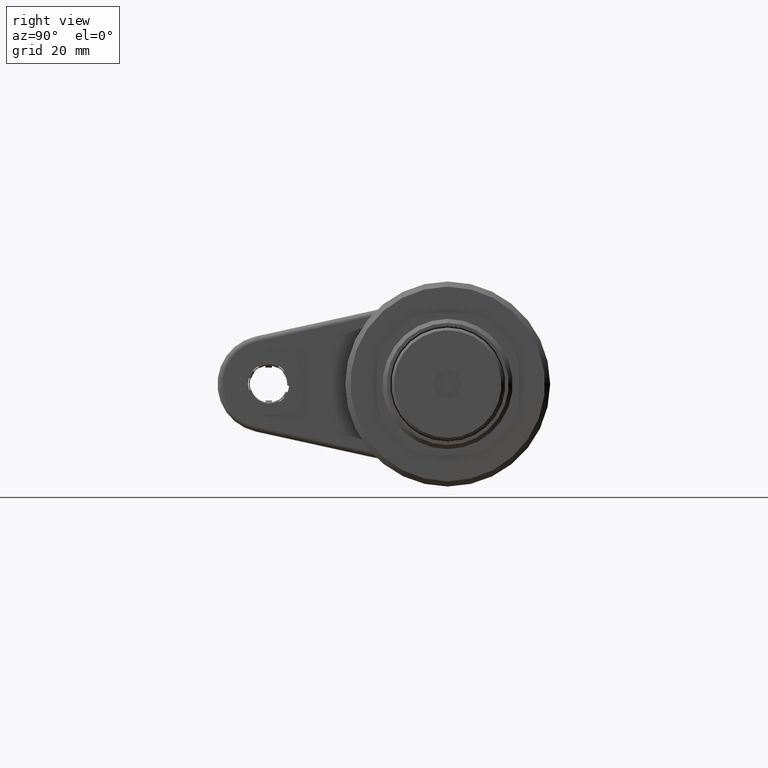
[diagram: clean part render]
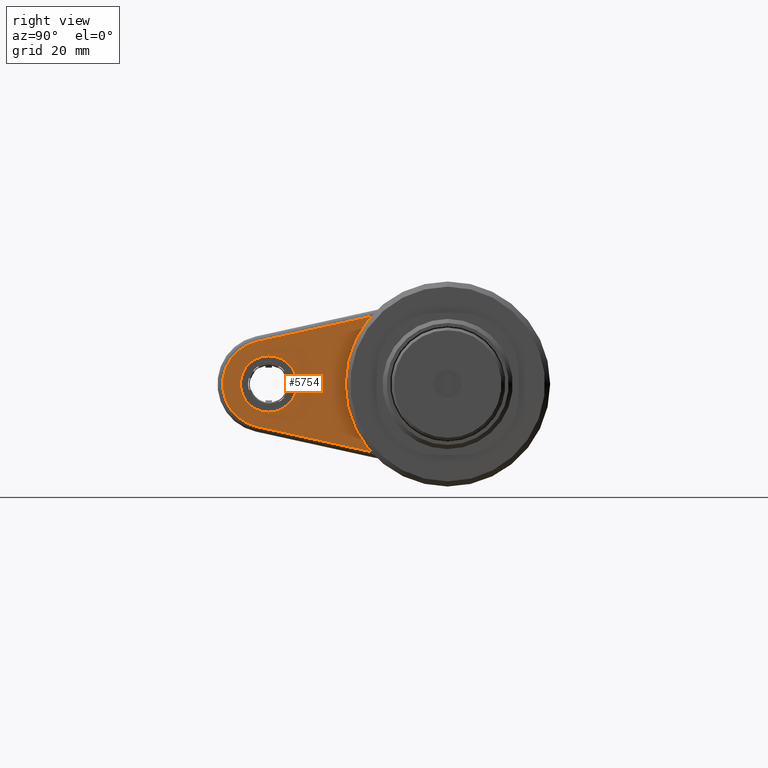
[diagram: same view with one face highlighted and labeled with its STEP entity id]
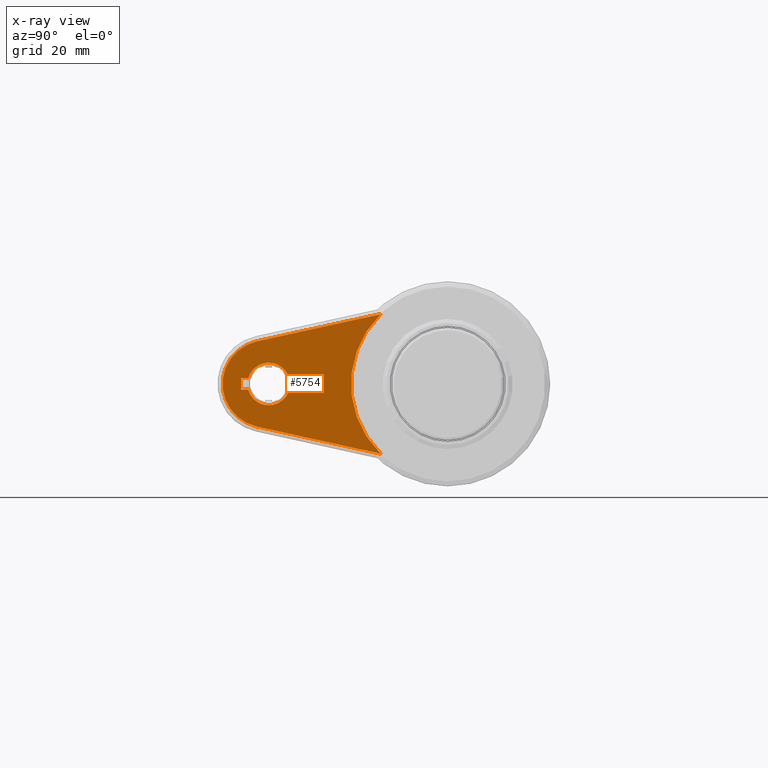
[diagram: x-ray of the same camera — body ghosted, the highlighted face saturated]
A machine part, right view. The second image highlights one B-rep face of the part: STEP entity #5754.
The next image is the same camera in x-ray: the body ghosted, the highlighted face saturated — about 0% of this face is hidden behind the body in this view.
In plain terms, the highlighted planar face has unit normal (-1, -0, 0).
Its self-contained STEP definition (entity closure, byte-faithful):
#113 = DIRECTION ( 'NONE',  ( 0.0000000000000000000, -3.994699618958047641E-46, 1.000000000000000000 ) ) ;
#433 = VERTEX_POINT ( 'NONE', #6097 ) ;
#460 = CARTESIAN_POINT ( 'NONE',  ( 104.7867410000000206, -38.91745413948463295, 1.099999999999993427 ) ) ;
#570 = AXIS2_PLACEMENT_3D ( 'NONE', #686, #3710, #1925 ) ;
#607 = VERTEX_POINT ( 'NONE', #4472 ) ;
#686 = CARTESIAN_POINT ( 'NONE',  ( 104.7867410000000206, -35.41589194454127210, -1.040834085586084257E-14 ) ) ;
#715 = CARTESIAN_POINT ( 'NONE',  ( 104.7867410000000206, -37.24003253021657400, -8.301958270413818397 ) ) ;
#726 = EDGE_LOOP ( 'NONE', ( #1356, #3476, #3234, #6616 ) ) ;
#738 = AXIS2_PLACEMENT_3D ( 'NONE', #3398, #3307, #5920 ) ;
#766 = AXIS2_PLACEMENT_3D ( 'NONE', #6247, #6833, #2832 ) ;
#1147 = EDGE_CURVE ( 'NONE', #433, #7347, #1957, .T. ) ;
#1311 = CARTESIAN_POINT ( 'NONE',  ( 104.7867410000000206, 0.0000000000000000000, -3.469446951953614189E-15 ) ) ;
#1356 = ORIENTED_EDGE ( 'NONE', *, *, #7530, .T. ) ;
#1425 = CIRCLE ( 'NONE', #766, 4.150000000000001243 ) ;
#1687 = LINE ( 'NONE', #4223, #4253 ) ;
#1780 = ORIENTED_EDGE ( 'NONE', *, *, #7009, .T. ) ;
#1832 = CARTESIAN_POINT ( 'NONE',  ( 104.7867410000000064, -40.31589194454127068, -1.100000000000014078 ) ) ;
#1850 = DIRECTION ( 'NONE',  ( -1.000000000000000000, -7.246906523033000898E-24, 6.890353203838667937E-24 ) ) ;
#1925 = DIRECTION ( 'NONE',  ( 0.0000000000000000000, 0.0000000000000000000, 1.000000000000000000 ) ) ;
#1937 = VERTEX_POINT ( 'NONE', #460 ) ;
#1957 = LINE ( 'NONE', #1832, #2126 ) ;
#1961 = ORIENTED_EDGE ( 'NONE', *, *, #1147, .F. ) ;
#1974 = VECTOR ( 'NONE', #7478, 1000.000000000000114 ) ;
#2126 = VECTOR ( 'NONE', #4454, 1000.000000000000000 ) ;
#2735 = FACE_BOUND ( 'NONE', #3085, .T. ) ;
#2832 = DIRECTION ( 'NONE',  ( 0.0000000000000000000, 0.0000000000000000000, 1.000000000000000000 ) ) ;
#2860 = EDGE_CURVE ( 'NONE', #3762, #7660, #8123, .T. ) ;
#2971 = EDGE_CURVE ( 'NONE', #7660, #3942, #2980, .T. ) ;
#2980 = CIRCLE ( 'NONE', #4047, 18.85000235780998779 ) ;
#3085 = EDGE_LOOP ( 'NONE', ( #1780, #6423, #1961, #7466 ) ) ;
#3234 = ORIENTED_EDGE ( 'NONE', *, *, #2971, .T. ) ;
#3307 = DIRECTION ( 'NONE',  ( -1.000000000000000000, -7.246906523033000898E-24, 6.890353203838688508E-24 ) ) ;
#3398 = CARTESIAN_POINT ( 'NONE',  ( 104.7867410000000206, -65.35000434652000934, 31.24999999999963052 ) ) ;
#3476 = ORIENTED_EDGE ( 'NONE', *, *, #2860, .T. ) ;
#3632 = CARTESIAN_POINT ( 'NONE',  ( 104.7867410000000206, -13.02984005947475232, -13.62152182811998280 ) ) ;
#3710 = DIRECTION ( 'NONE',  ( 1.000000000000000000, 7.246906523033000898E-24, -6.890353203838667937E-24 ) ) ;
#3762 = VERTEX_POINT ( 'NONE', #715 ) ;
#3832 = EDGE_CURVE ( 'NONE', #1937, #7347, #1425, .T. ) ;
#3942 = VERTEX_POINT ( 'NONE', #5129 ) ;
#4047 = AXIS2_PLACEMENT_3D ( 'NONE', #1311, #1850, #113 ) ;
#4223 = CARTESIAN_POINT ( 'NONE',  ( 104.7867410000000206, -40.31589194454127068, 1.099999999999993427 ) ) ;
#4253 = VECTOR ( 'NONE', #6122, 1000.000000000000000 ) ;
#4268 = CARTESIAN_POINT ( 'NONE',  ( 104.7867410000000206, -72.34566975415590662, -0.5884025573724867009 ) ) ;
#4454 = DIRECTION ( 'NONE',  ( -7.246906523033000898E-24, 1.000000000000000000, -3.994699618958049197E-46 ) ) ;
#4472 = CARTESIAN_POINT ( 'NONE',  ( 104.7867410000000206, -37.24003253021655979, 8.301958270413797081 ) ) ;
#4691 = CIRCLE ( 'NONE', #570, 8.500000000000000000 ) ;
#4779 = VERTEX_POINT ( 'NONE', #7313 ) ;
#4870 = CARTESIAN_POINT ( 'NONE',  ( 104.7867410000000206, -59.24537648283729396, 3.466853142413798494 ) ) ;
#4943 = VECTOR ( 'NONE', #6683, 1000.000000000000000 ) ;
#5129 = CARTESIAN_POINT ( 'NONE',  ( 104.7867410000000206, -13.02984005947478074, 13.62152182811995260 ) ) ;
#5227 = VECTOR ( 'NONE', #8004, 999.9999999999998863 ) ;
#5305 = FACE_OUTER_BOUND ( 'NONE', #726, .T. ) ;
#5606 = LINE ( 'NONE', #4870, #1974 ) ;
#5754 = ADVANCED_FACE ( 'NONE', ( #5305, #2735 ), #6458, .F. ) ;
#5920 = DIRECTION ( 'NONE',  ( 6.890353203838688508E-24, -3.994699618958047641E-46, 1.000000000000000000 ) ) ;
#5940 = CARTESIAN_POINT ( 'NONE',  ( 104.7867410000000064, -40.31589194454127068, -1.100000000000014078 ) ) ;
#6069 = CARTESIAN_POINT ( 'NONE',  ( 104.7867410000000064, -38.91745413948463295, -1.100000000000014078 ) ) ;
#6097 = CARTESIAN_POINT ( 'NONE',  ( 104.7867410000000064, -40.31589194454127068, -1.100000000000014078 ) ) ;
#6122 = DIRECTION ( 'NONE',  ( -7.246906523033000898E-24, 1.000000000000000000, -3.994699618958049197E-46 ) ) ;
#6139 = EDGE_CURVE ( 'NONE', #3942, #607, #5606, .T. ) ;
#6247 = CARTESIAN_POINT ( 'NONE',  ( 104.7867410000000206, -34.91589194454127210, -1.040834085586084257E-14 ) ) ;
#6423 = ORIENTED_EDGE ( 'NONE', *, *, #3832, .T. ) ;
#6458 = PLANE ( 'NONE',  #738 ) ;
#6616 = ORIENTED_EDGE ( 'NONE', *, *, #6139, .T. ) ;
#6683 = DIRECTION ( 'NONE',  ( 6.890353203838688508E-24, -3.994699618958048419E-46, 1.000000000000000000 ) ) ;
#6833 = DIRECTION ( 'NONE',  ( -1.000000000000000000, -7.246906523033000898E-24, 6.890353203838667937E-24 ) ) ;
#7009 = EDGE_CURVE ( 'NONE', #4779, #1937, #1687, .T. ) ;
#7313 = CARTESIAN_POINT ( 'NONE',  ( 104.7867410000000206, -40.31589194454127068, 1.099999999999993427 ) ) ;
#7347 = VERTEX_POINT ( 'NONE', #6069 ) ;
#7352 = LINE ( 'NONE', #5940, #4943 ) ;
#7466 = ORIENTED_EDGE ( 'NONE', *, *, #7836, .T. ) ;
#7478 = DIRECTION ( 'NONE',  ( 5.599357954711725023E-24, -0.9767009729898595838, -0.2146047747853285503 ) ) ;
#7530 = EDGE_CURVE ( 'NONE', #607, #3762, #4691, .T. ) ;
#7660 = VERTEX_POINT ( 'NONE', #3632 ) ;
#7836 = EDGE_CURVE ( 'NONE', #433, #4779, #7352, .T. ) ;
#8004 = DIRECTION ( 'NONE',  ( -8.556763349714066607E-24, 0.9767009729898595838, -0.2146047747853288279 ) ) ;
#8123 = LINE ( 'NONE', #4268, #5227 ) ;